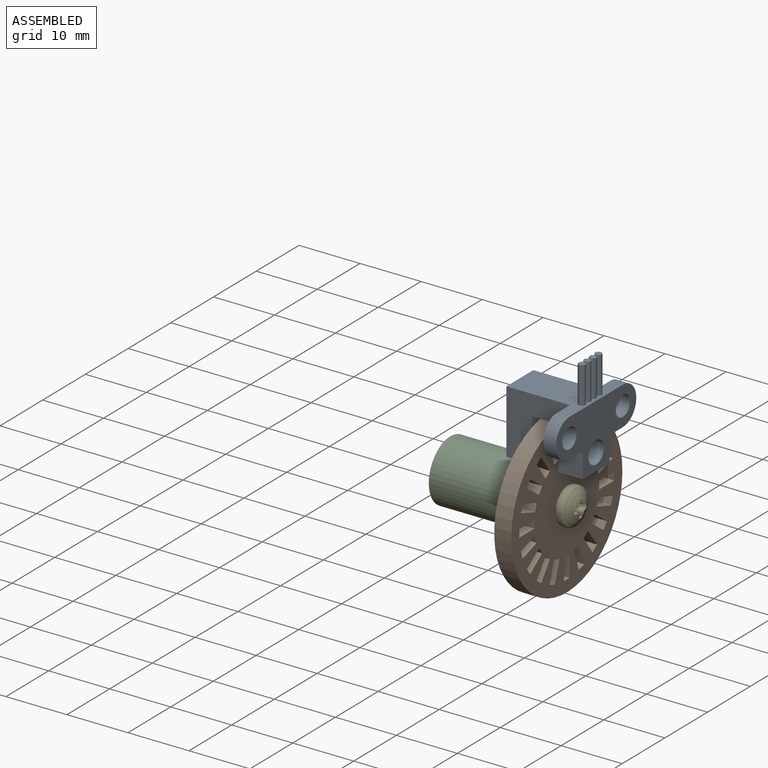
[diagram: assembled view]
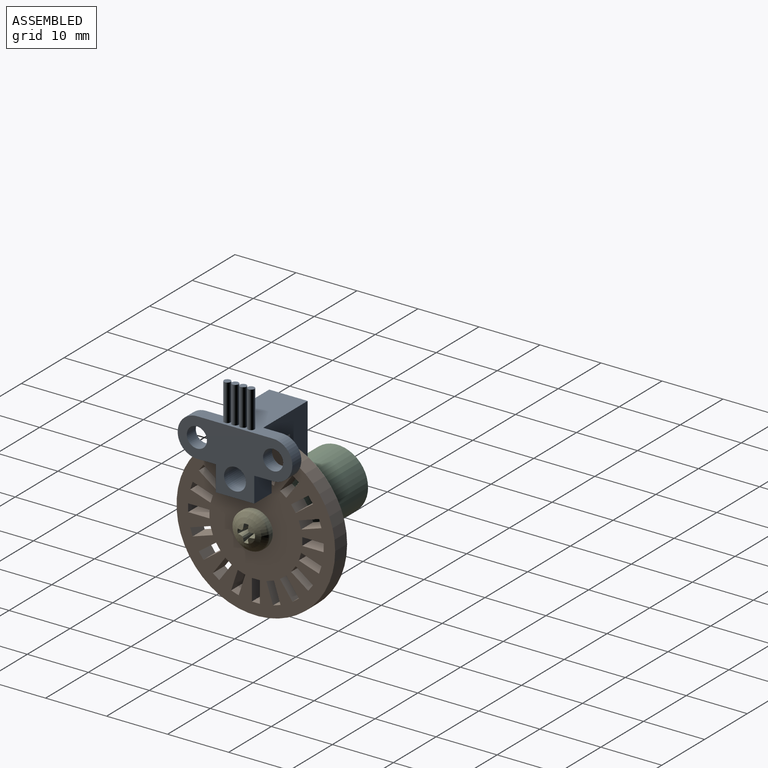
[diagram: assembled view, second angle]
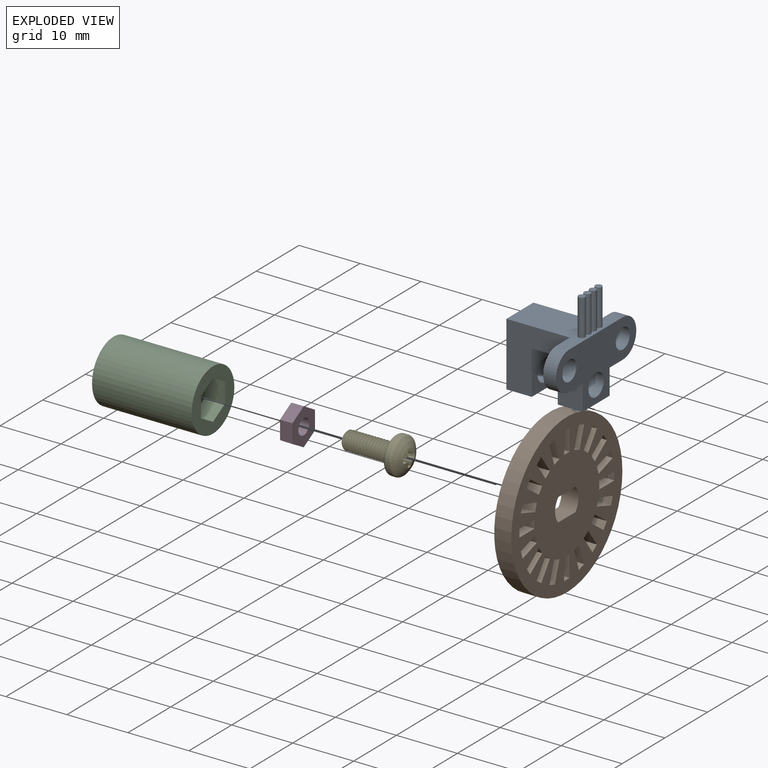
[diagram: exploded view]
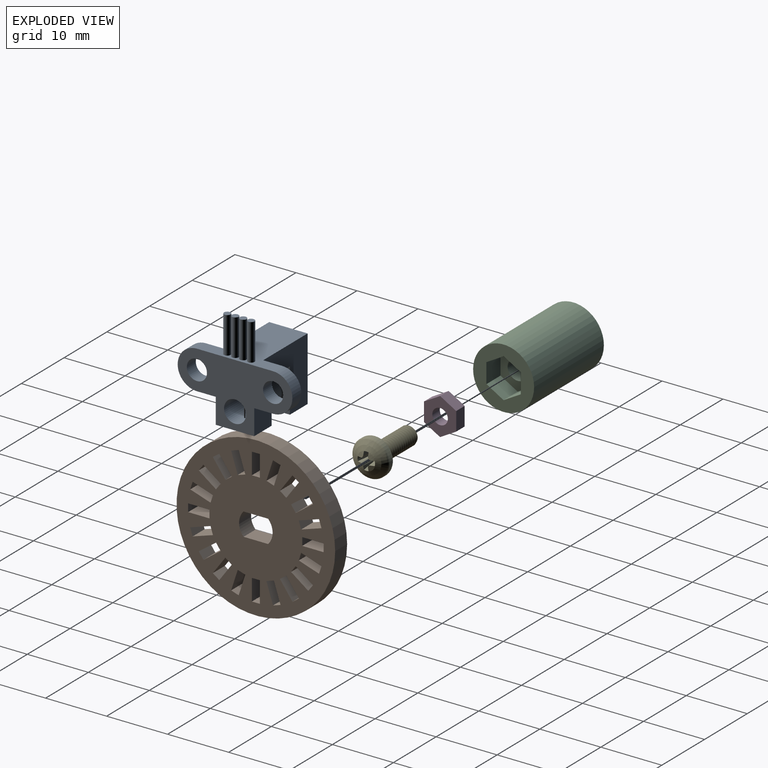
[diagram: exploded view, second angle]
ASSEMBLY  parts=5 mates=4
PART A: 28 faces, bbox 12.5x18.8x16.5 mm
  f0: plane 12.5x10.45mm, normal (0,-1,0), area 86.9mm2, adj f2,f3,f4,f5,f6,f7,f8,f9
  f1: plane 12.5x10.45mm, normal (0,1,0), area 86.9mm2, adj f2,f3,f4,f5,f6,f7,f8,f9
  f2: plane 6.3x4.26mm, normal (0,0,-1), area 26.8mm2, adj f0,f1,f6,f8
  f3: plane 12.5x12.5mm, normal (0,0,1), area 88mm2, adj f0,f1,f4,f5,f11,f12,f13,f15
  f4: plane 18.8x10.45mm, normal (1,0,0), area 108.8mm2, adj f0,f1,f3,f7,f10,f11,f13,f14
  f5: plane 10.45x6.3mm, normal (-1,0,0), area 55.7mm2, adj f0,f1,f3,f9,f18
  f6: plane 7.15x6.3mm, normal (-1,0,0), area 34.9mm2, adj f0,f1,f2,f7,f19
  f7: plane 6.3x4.08mm, normal (0,0,-1), area 25.7mm2, adj f0,f1,f4,f6
  f8: plane 7.15x6.3mm, normal (1,0,0), area 34.9mm2, adj f0,f1,f2,f9,f18
  f9: plane 6.3x4.16mm, normal (0,0,-1), area 26.2mm2, adj f0,f1,f5,f8
  f10: plane 3.06x2.1mm, normal (0,0,-1), area 6.4mm2, adj f1,f4,f11,f12
  f11: cylinder r=3.15mm len=6.3mm, axis (1,0,0), area 20.9mm2, adj f3,f4,f10,f12
  f12: plane 6.3x6.25mm, normal (-1,0,0), area 26.6mm2, adj f1,f3,f10,f11,f17
  f13: cylinder r=3.15mm len=6.3mm, axis (1,0,0), area 20.9mm2, adj f3,f4,f14,f15
  f14: plane 3.06x2.1mm, normal (0,0,-1), area 6.4mm2, adj f0,f4,f13,f15
  f15: plane 6.3x6.25mm, normal (-1,0,0), area 26.6mm2, adj f0,f3,f13,f14,f16
  f16: cylinder r=1.65mm len=3.3mm, axis (1,0,0), area 21.8mm2, adj f4,f15
  f17: cylinder r=1.65mm len=3.3mm, axis (1,0,0), area 21.8mm2, adj f4,f12
  f18: cylinder r=1.8mm len=4.16mm, axis (-1,0,0), area 47mm2, adj f5,f8
  f19: cylinder r=1.8mm len=4.08mm, axis (-1,0,0), area 46.1mm2, adj f4,f6
  f20: cylinder r=0.55mm len=6mm, axis (0,0,-1), area 20.7mm2, adj f3,f21
  f21: plane 1.1x1.1mm, normal (0,0,1), area 1mm2, adj f20
  f22: cylinder r=0.55mm len=6mm, axis (0,0,-1), area 20.7mm2, adj f3,f23
  f23: plane 1.1x1.1mm, normal (0,0,1), area 1mm2, adj f22
  f24: cylinder r=0.55mm len=6mm, axis (0,0,-1), area 20.7mm2, adj f3,f25
  f25: plane 1.1x1.1mm, normal (0,0,1), area 1mm2, adj f24
  f26: cylinder r=0.55mm len=6mm, axis (0,0,-1), area 20.7mm2, adj f3,f27
  f27: plane 1.1x1.1mm, normal (0,0,1), area 1mm2, adj f26
PART B: 87 faces, bbox 2.8x26x26 mm
  f0: plane 26x26mm, normal (1,0,0), area 421mm2, adj f2,f3,f4,f5,f6,f7,f8,f9
  f1: plane 26x26mm, normal (-1,0,0), area 421mm2, adj f2,f3,f4,f5,f6,f7,f8,f9
  f2: cylinder r=13mm len=26mm, axis (-1,0,0), area 228.7mm2, adj f0,f1
  f3: plane 2.8x1.3mm, normal (0,0,-1), area 3.6mm2, adj f0,f1,f4,f6
  f4: plane 3.5x2.8mm, normal (0,-1,0), area 9.8mm2, adj f0,f1,f3,f5
  f5: plane 2.8x1.3mm, normal (0,0,1), area 3.6mm2, adj f0,f1,f4,f6
  f6: plane 3.5x2.8mm, normal (0,1,0), area 9.8mm2, adj f0,f1,f3,f5
  f7: plane 2.8x1.24mm, normal (0,-0.31,0.95), area 3.6mm2, adj f0,f1,f8,f10
  f8: plane 3.33x2.8mm, normal (0,0.95,0.31), area 9.8mm2, adj f0,f1,f7,f9
  f9: plane 2.8x1.24mm, normal (0,0.31,-0.95), area 3.6mm2, adj f0,f1,f8,f10
  f10: plane 3.33x2.8mm, normal (0,-0.95,-0.31), area 9.8mm2, adj f0,f1,f7,f9
  f11: plane 2.8x1.05mm, normal (0,-0.59,0.81), area 3.6mm2, adj f0,f1,f12,f14
  f12: plane 2.83x2.8mm, normal (0,0.81,0.59), area 9.8mm2, adj f0,f1,f11,f13
  f13: plane 2.8x1.05mm, normal (0,0.59,-0.81), area 3.6mm2, adj f0,f1,f12,f14
  f14: plane 2.83x2.8mm, normal (0,-0.81,-0.59), area 9.8mm2, adj f0,f1,f11,f13
  f15: plane 2.8x1.05mm, normal (0,-0.81,0.59), area 3.6mm2, adj f0,f1,f16,f18
  f16: plane 2.83x2.8mm, normal (0,0.59,0.81), area 9.8mm2, adj f0,f1,f15,f17
  f17: plane 2.8x1.05mm, normal (0,0.81,-0.59), area 3.6mm2, adj f0,f1,f16,f18
  f18: plane 2.83x2.8mm, normal (0,-0.59,-0.81), area 9.8mm2, adj f0,f1,f15,f17
  f19: plane 2.8x1.24mm, normal (0,-0.95,0.31), area 3.6mm2, adj f0,f1,f20,f22
  f20: plane 3.33x2.8mm, normal (0,0.31,0.95), area 9.8mm2, adj f0,f1,f19,f21
  f21: plane 2.8x1.24mm, normal (0,0.95,-0.31), area 3.6mm2, adj f0,f1,f20,f22
  f22: plane 3.33x2.8mm, normal (0,-0.31,-0.95), area 9.8mm2, adj f0,f1,f19,f21
  f23: plane 2.8x1.3mm, normal (0,-1,0), area 3.6mm2, adj f0,f1,f24,f26
  f24: plane 3.5x2.8mm, normal (0,0,1), area 9.8mm2, adj f0,f1,f23,f25
  f25: plane 2.8x1.3mm, normal (0,1,0), area 3.6mm2, adj f0,f1,f24,f26
  f26: plane 3.5x2.8mm, normal (0,0,-1), area 9.8mm2, adj f0,f1,f23,f25
  f27: plane 2.8x1.24mm, normal (0,-0.95,-0.31), area 3.6mm2, adj f0,f1,f28,f30
  f28: plane 3.33x2.8mm, normal (0,-0.31,0.95), area 9.8mm2, adj f0,f1,f27,f29
  f29: plane 2.8x1.24mm, normal (0,0.95,0.31), area 3.6mm2, adj f0,f1,f28,f30
  f30: plane 3.33x2.8mm, normal (0,0.31,-0.95), area 9.8mm2, adj f0,f1,f27,f29
  f31: plane 2.8x1.05mm, normal (0,-0.81,-0.59), area 3.6mm2, adj f0,f1,f32,f34
  f32: plane 2.83x2.8mm, normal (0,-0.59,0.81), area 9.8mm2, adj f0,f1,f31,f33
  f33: plane 2.8x1.05mm, normal (0,0.81,0.59), area 3.6mm2, adj f0,f1,f32,f34
  f34: plane 2.83x2.8mm, normal (0,0.59,-0.81), area 9.8mm2, adj f0,f1,f31,f33
  f35: plane 2.8x1.05mm, normal (0,-0.59,-0.81), area 3.6mm2, adj f0,f1,f36,f38
  f36: plane 2.83x2.8mm, normal (0,-0.81,0.59), area 9.8mm2, adj f0,f1,f35,f37
  f37: plane 2.8x1.05mm, normal (0,0.59,0.81), area 3.6mm2, adj f0,f1,f36,f38
  f38: plane 2.83x2.8mm, normal (0,0.81,-0.59), area 9.8mm2, adj f0,f1,f35,f37
  f39: plane 2.8x1.24mm, normal (0,-0.31,-0.95), area 3.6mm2, adj f0,f1,f40,f42
  f40: plane 3.33x2.8mm, normal (0,-0.95,0.31), area 9.8mm2, adj f0,f1,f39,f41
  f41: plane 2.8x1.24mm, normal (0,0.31,0.95), area 3.6mm2, adj f0,f1,f40,f42
  f42: plane 3.33x2.8mm, normal (0,0.95,-0.31), area 9.8mm2, adj f0,f1,f39,f41
  f43: plane 2.8x1.3mm, normal (0,0,-1), area 3.6mm2, adj f0,f1,f44,f46
  f44: plane 3.5x2.8mm, normal (0,-1,0), area 9.8mm2, adj f0,f1,f43,f45
  f45: plane 2.8x1.3mm, normal (0,0,1), area 3.6mm2, adj f0,f1,f44,f46
  f46: plane 3.5x2.8mm, normal (0,1,0), area 9.8mm2, adj f0,f1,f43,f45
  f47: plane 2.8x1.24mm, normal (0,0.31,-0.95), area 3.6mm2, adj f0,f1,f48,f50
  f48: plane 3.33x2.8mm, normal (0,-0.95,-0.31), area 9.8mm2, adj f0,f1,f47,f49
  f49: plane 2.8x1.24mm, normal (0,-0.31,0.95), area 3.6mm2, adj f0,f1,f48,f50
  f50: plane 3.33x2.8mm, normal (0,0.95,0.31), area 9.8mm2, adj f0,f1,f47,f49
  f51: plane 2.8x1.05mm, normal (0,0.59,-0.81), area 3.6mm2, adj f0,f1,f52,f54
  f52: plane 2.83x2.8mm, normal (0,-0.81,-0.59), area 9.8mm2, adj f0,f1,f51,f53
  f53: plane 2.8x1.05mm, normal (0,-0.59,0.81), area 3.6mm2, adj f0,f1,f52,f54
  f54: plane 2.83x2.8mm, normal (0,0.81,0.59), area 9.8mm2, adj f0,f1,f51,f53
  f55: plane 2.8x1.05mm, normal (0,0.81,-0.59), area 3.6mm2, adj f0,f1,f56,f58
  f56: plane 2.83x2.8mm, normal (0,-0.59,-0.81), area 9.8mm2, adj f0,f1,f55,f57
  f57: plane 2.8x1.05mm, normal (0,-0.81,0.59), area 3.6mm2, adj f0,f1,f56,f58
  f58: plane 2.83x2.8mm, normal (0,0.59,0.81), area 9.8mm2, adj f0,f1,f55,f57
  f59: plane 2.8x1.24mm, normal (0,0.95,-0.31), area 3.6mm2, adj f0,f1,f60,f62
  f60: plane 3.33x2.8mm, normal (0,-0.31,-0.95), area 9.8mm2, adj f0,f1,f59,f61
  f61: plane 2.8x1.24mm, normal (0,-0.95,0.31), area 3.6mm2, adj f0,f1,f60,f62
  f62: plane 3.33x2.8mm, normal (0,0.31,0.95), area 9.8mm2, adj f0,f1,f59,f61
  f63: plane 2.8x1.3mm, normal (0,1,0), area 3.6mm2, adj f0,f1,f64,f66
  f64: plane 3.5x2.8mm, normal (0,0,-1), area 9.8mm2, adj f0,f1,f63,f65
  f65: plane 2.8x1.3mm, normal (0,-1,0), area 3.6mm2, adj f0,f1,f64,f66
  f66: plane 3.5x2.8mm, normal (0,0,1), area 9.8mm2, adj f0,f1,f63,f65
  f67: plane 2.8x1.24mm, normal (0,0.95,0.31), area 3.6mm2, adj f0,f1,f68,f70
  f68: plane 3.33x2.8mm, normal (0,0.31,-0.95), area 9.8mm2, adj f0,f1,f67,f69
  f69: plane 2.8x1.24mm, normal (0,-0.95,-0.31), area 3.6mm2, adj f0,f1,f68,f70
  f70: plane 3.33x2.8mm, normal (0,-0.31,0.95), area 9.8mm2, adj f0,f1,f67,f69
  f71: plane 2.8x1.05mm, normal (0,0.81,0.59), area 3.6mm2, adj f0,f1,f72,f74
  f72: plane 2.83x2.8mm, normal (0,0.59,-0.81), area 9.8mm2, adj f0,f1,f71,f73
  f73: plane 2.8x1.05mm, normal (0,-0.81,-0.59), area 3.6mm2, adj f0,f1,f72,f74
  f74: plane 2.83x2.8mm, normal (0,-0.59,0.81), area 9.8mm2, adj f0,f1,f71,f73
  f75: plane 2.8x1.05mm, normal (0,0.59,0.81), area 3.6mm2, adj f0,f1,f76,f78
  f76: plane 2.83x2.8mm, normal (0,0.81,-0.59), area 9.8mm2, adj f0,f1,f75,f77
  f77: plane 2.8x1.05mm, normal (0,-0.59,-0.81), area 3.6mm2, adj f0,f1,f76,f78
  f78: plane 2.83x2.8mm, normal (0,-0.81,0.59), area 9.8mm2, adj f0,f1,f75,f77
  f79: plane 3.33x2.8mm, normal (0,-0.95,0.31), area 9.8mm2, adj f0,f1,f80,f82
  f80: plane 2.8x1.24mm, normal (0,-0.31,-0.95), area 3.6mm2, adj f0,f1,f79,f81
  f81: plane 3.33x2.8mm, normal (0,0.95,-0.31), area 9.8mm2, adj f0,f1,f80,f82
  f82: plane 2.8x1.24mm, normal (0,0.31,0.95), area 3.6mm2, adj f0,f1,f79,f81
  f83: cylinder r=2.75mm len=3.75mm, axis (-1,0,0), area 11.6mm2, adj f0,f1,f84,f85
  f84: plane 4.02x2.8mm, normal (0,0,1), area 11.3mm2, adj f0,f1,f83,f86
  f85: plane 4.02x2.8mm, normal (0,0,-1), area 11.3mm2, adj f0,f1,f83,f86
  f86: cylinder r=2.75mm len=3.75mm, axis (-1,0,0), area 11.6mm2, adj f0,f1,f84,f85
PART C: 15 faces, bbox 16.3x10x10 mm
  f0: plane 6x0.76mm, normal (0,0,-1), area 4.6mm2, adj f1,f11,f12,f14
  f1: cylinder r=1.65mm len=13.03mm, axis (-1,0,0), area 86mm2, adj f0,f3,f12,f13,f14
  f2: cylinder r=5mm len=16.33mm, axis (1,0,0), area 513mm2, adj f10,f12
  f3: plane 6.5x5.63mm, normal (1,0,0), area 18.9mm2, adj f1,f4,f5,f6,f7,f8,f9
  f4: plane 3.3x3.25mm, normal (0,-1,0), area 10.7mm2, adj f3,f5,f9,f10
  f5: plane 3.3x2.82mm, normal (0,-0.5,0.87), area 10.7mm2, adj f3,f4,f6,f10
  f6: plane 3.3x2.82mm, normal (0,0.5,0.87), area 10.7mm2, adj f3,f5,f7,f10
  f7: plane 3.3x3.25mm, normal (0,1,0), area 10.7mm2, adj f3,f6,f8,f10
  f8: plane 3.3x2.82mm, normal (0,0.5,-0.87), area 10.7mm2, adj f3,f7,f9,f10
  f9: plane 3.3x2.82mm, normal (0,-0.5,-0.87), area 10.7mm2, adj f3,f4,f8,f10
  f10: plane 10x10mm, normal (1,0,0), area 51.1mm2, adj f2,f4,f5,f6,f7,f8,f9
  f11: cylinder r=2.2mm len=6mm, axis (1,0,0), area 58.2mm2, adj f0,f12,f13,f14
  f12: plane 10x10mm, normal (-1,0,0), area 65.1mm2, adj f0,f1,f2,f11,f13
  f13: plane 6x0.76mm, normal (0,0,-1), area 4.6mm2, adj f1,f11,f12,f14
  f14: plane 4.4x3.5mm, normal (-1,0,0), area 4.9mm2, adj f0,f1,f11,f13
PART D: 16 faces, bbox 2.2x5.3x6.1 mm
  f0: plane 2.64x1.87mm, normal (0,0.5,-0.87), area 5.7mm2, adj f1,f5,f6,f11
  f1: plane 3.05x1.87mm, normal (0,1,0), area 5.7mm2, adj f0,f2,f6,f10
  f2: plane 2.64x1.87mm, normal (0,0.5,0.87), area 5.7mm2, adj f1,f3,f6,f12
  f3: plane 2.64x1.87mm, normal (0,-0.5,0.87), area 5.7mm2, adj f2,f4,f6,f14
  f4: plane 3.05x1.87mm, normal (0,-1,0), area 5.7mm2, adj f3,f5,f6,f15
  f5: plane 2.64x1.87mm, normal (0,-0.5,-0.87), area 5.7mm2, adj f0,f4,f6,f13
  f6: plane 6.1x5.28mm, normal (1,0,0), area 19.1mm2, adj f0,f1,f2,f3,f4,f5,f8
  f7: plane 5.4x4.68mm, normal (-1,0,0), area 9.9mm2, adj f9,f10,f11,f12,f13,f14,f15
  f8: cylinder r=1.27mm len=2.54mm, axis (-1,0,0), area 13.9mm2, adj f6,f9
  f9: cone r=1.27mm half-angle=45deg, axis (-1,0,0), area 5.7mm2, adj f7,f8
  f10: cylinder r=0.3mm len=3.05mm, axis (0,0,1), area 1.4mm2, adj f1,f7,f11,f12
  f11: cylinder r=0.3mm len=2.79mm, axis (0,0.87,0.5), area 1.4mm2, adj f0,f7,f10,f13
  f12: cylinder r=0.3mm len=2.79mm, axis (0,-0.87,0.5), area 1.4mm2, adj f2,f7,f10,f14
  f13: cylinder r=0.3mm len=2.79mm, axis (0,0.87,-0.5), area 1.4mm2, adj f5,f7,f11,f15
  f14: cylinder r=0.3mm len=2.79mm, axis (0,-0.87,-0.5), area 1.4mm2, adj f3,f7,f12,f15
  f15: cylinder r=0.3mm len=3.05mm, axis (0,0,-1), area 1.4mm2, adj f4,f7,f13,f14
PART E: 64 faces, bbox 10.7x6.7x6.7 mm
  f0: cylinder r=1.5mm len=3mm, axis (1,0,0), area 0.3mm2, adj f16,f17,f32,f33
  f1: cylinder r=1.5mm len=3mm, axis (1,0,0), area 0.3mm2, adj f17,f18,f32,f33
  f2: cylinder r=1.5mm len=3mm, axis (1,0,0), area 0.3mm2, adj f18,f19,f32,f33
  f3: cylinder r=1.5mm len=3mm, axis (1,0,0), area 0.3mm2, adj f19,f20,f32,f33
  f4: cylinder r=1.5mm len=3mm, axis (1,0,0), area 0.3mm2, adj f20,f21,f32,f33
  f5: cylinder r=1.5mm len=3mm, axis (1,0,0), area 0.3mm2, adj f21,f22,f32,f33
  f6: cylinder r=1.5mm len=3mm, axis (1,0,0), area 0.3mm2, adj f22,f23,f32,f33
  f7: cylinder r=1.5mm len=3mm, axis (1,0,0), area 0.3mm2, adj f23,f24,f32,f33
  f8: cylinder r=1.5mm len=3mm, axis (1,0,0), area 0.3mm2, adj f24,f25,f32,f33
  f9: cylinder r=1.5mm len=3mm, axis (1,0,0), area 0.3mm2, adj f25,f26,f32,f33
  f10: cylinder r=1.5mm len=3mm, axis (1,0,0), area 0.3mm2, adj f26,f27,f32,f33
  f11: cylinder r=1.5mm len=3mm, axis (1,0,0), area 0.3mm2, adj f27,f28,f32,f33
  f12: cylinder r=1.5mm len=3mm, axis (1,0,0), area 0.3mm2, adj f28,f29,f32,f33
  f13: cylinder r=1.5mm len=3mm, axis (1,0,0), area 0.3mm2, adj f29,f30,f32,f33
  f14: cylinder r=1.5mm len=3mm, axis (1,0,0), area 0.3mm2, adj f30,f32,f33,f34
  f15: cylinder r=1.5mm len=0.58mm, axis (1,0,0), area 0mm2, adj f16,f31,f33
  f16: cylinder r=1.5mm len=3mm, axis (1,0,0), area 0.3mm2, adj f0,f15,f31,f32,f33
  f17: cylinder r=1.5mm len=3mm, axis (1,0,0), area 0.3mm2, adj f0,f1,f32,f33
  f18: cylinder r=1.5mm len=3mm, axis (1,0,0), area 0.3mm2, adj f1,f2,f32,f33
  f19: cylinder r=1.5mm len=3mm, axis (1,0,0), area 0.3mm2, adj f2,f3,f32,f33
  f20: cylinder r=1.5mm len=3mm, axis (1,0,0), area 0.3mm2, adj f3,f4,f32,f33
  f21: cylinder r=1.5mm len=3mm, axis (1,0,0), area 0.3mm2, adj f4,f5,f32,f33
  f22: cylinder r=1.5mm len=3mm, axis (1,0,0), area 0.3mm2, adj f5,f6,f32,f33
  f23: cylinder r=1.5mm len=3mm, axis (1,0,0), area 0.3mm2, adj f6,f7,f32,f33
  f24: cylinder r=1.5mm len=3mm, axis (1,0,0), area 0.3mm2, adj f7,f8,f32,f33
  f25: cylinder r=1.5mm len=3mm, axis (1,0,0), area 0.3mm2, adj f8,f9,f32,f33
  f26: cylinder r=1.5mm len=3mm, axis (1,0,0), area 0.3mm2, adj f9,f10,f32,f33
  f27: cylinder r=1.5mm len=3mm, axis (1,0,0), area 0.3mm2, adj f10,f11,f32,f33
  f28: cylinder r=1.5mm len=3mm, axis (1,0,0), area 0.3mm2, adj f11,f12,f32,f33
  f29: cylinder r=1.5mm len=3mm, axis (1,0,0), area 0.3mm2, adj f12,f13,f32,f33
  f30: cylinder r=1.5mm len=3mm, axis (1,0,0), area 0.3mm2, adj f13,f14,f32,f33
  f31: plane 5.29x5.29mm, normal (-1,0,0), area 14.8mm2, adj f15,f16,f32,f33,f37,f39
  f32: bspline ~8.19x3.46mm, area 49.2mm2, adj f0,f1,f2,f3,f4,f5,f6,f7
  f33: bspline ~8.27x3.46mm, area 49.4mm2, adj f0,f1,f2,f3,f4,f5,f6,f7
  f34: cylinder r=1.5mm len=2.78mm, axis (1,0,0), area 0.2mm2, adj f14,f32,f33,f38
  f35: bspline ~2.53x1.31mm, area 0.3mm2, adj f32,f37,f38
  f36: plane 2.35x2.35mm, normal (-1,0,0), area 4.3mm2, adj f37,f38
  f37: cylinder r=1.18mm len=8mm, axis (1,0,0), area 16.7mm2, adj f31,f32,f33,f35,f36
  f38: cone r=4.35mm half-angle=45deg, axis (1,0,0), area 1.9mm2, adj f32,f33,f34,f35,f36
  f39: torus R=2.55mm, axis (1,0,0), area 12.6mm2, adj f31,f40
  f40: cylinder r=3mm len=6mm, axis (-1,0,0), area 11.5mm2, adj f39,f42
  f41: sphere r=4.22mm, area 25.3mm2, adj f42,f43,f44,f45,f46,f47,f48,f50
  f42: torus R=2.55mm, axis (1,0,0), area 6.9mm2, adj f40,f41
  f43: cone r=1.5mm half-angle=15deg, axis (1,0,0), area 1.2mm2, adj f41,f44,f49,f63
  f44: plane 2.1x0.73mm, normal (0.09,0,1), area 0.8mm2, adj f41,f43,f45,f49
  f45: plane 2.09x0.42mm, normal (0.09,-0.38,0.92), area 0.7mm2, adj f41,f44,f46,f49
  f46: plane 2.09x0.42mm, normal (0.09,-0.92,0.38), area 0.7mm2, adj f41,f45,f47,f49
  f47: plane 2.1x0.73mm, normal (0.09,-1,0), area 0.8mm2, adj f41,f46,f48,f49
  f48: cone r=1.5mm half-angle=15deg, axis (1,0,0), area 1.2mm2, adj f41,f47,f49,f50
  f49: plane 1.86x1.86mm, normal (1,0,0), area 1.7mm2, adj f43,f44,f45,f46,f47,f48,f50,f51
  f50: plane 2.1x0.73mm, normal (0.09,1,0), area 0.8mm2, adj f41,f48,f49,f51
  f51: plane 2.09x0.42mm, normal (0.09,0.92,0.38), area 0.7mm2, adj f41,f49,f50,f52
  f52: plane 2.09x0.42mm, normal (0.09,0.38,0.92), area 0.7mm2, adj f41,f49,f51,f53
  f53: plane 2.1x0.73mm, normal (0.09,0,1), area 0.8mm2, adj f41,f49,f52,f54
  f54: cone r=1.5mm half-angle=15deg, axis (1,0,0), area 1.2mm2, adj f41,f49,f53,f55
  f55: plane 2.1x0.73mm, normal (0.09,0,-1), area 0.8mm2, adj f41,f49,f54,f56
  f56: plane 2.09x0.42mm, normal (0.09,0.38,-0.92), area 0.7mm2, adj f41,f49,f55,f57
  f57: plane 2.09x0.42mm, normal (0.09,0.92,-0.38), area 0.7mm2, adj f41,f49,f56,f58
  f58: plane 2.1x0.73mm, normal (0.09,1,0), area 0.8mm2, adj f41,f49,f57,f59
  f59: cone r=1.5mm half-angle=15deg, axis (1,0,0), area 1.2mm2, adj f41,f49,f58,f60
  f60: plane 2.1x0.73mm, normal (0.09,-1,0), area 0.8mm2, adj f41,f49,f59,f61
  f61: plane 2.09x0.42mm, normal (0.09,-0.92,-0.38), area 0.7mm2, adj f41,f49,f60,f62
  f62: plane 2.09x0.42mm, normal (0.09,-0.38,-0.92), area 0.7mm2, adj f41,f49,f61,f63
  f63: plane 2.1x0.73mm, normal (0.09,0,-1), area 0.8mm2, adj f41,f43,f49,f62
PLACE A t=(-0.11,85.97,-18)mm
PLACE B t=(-0.09,86,-17.68)mm
PLACE C t=(0,86,-17.68)mm
PLACE D t=(-2.08,86,-17.68)mm
PLACE E rot(axis=(-1,0,0),90deg) t=(1.23,23.5,-69.18)mm
MATE fastened E.f59 <-> B.f2  axis (-1,0,0) through (-6.37,29,-12.18)mm
MATE fastened D.f8 <-> C.f1  axis (-1,0,0) through (-12.47,29,-12.18)mm
MATE fastened C.f1 <-> B.f2  axis (1,0,0) through (-9.17,29,-12.18)mm
MATE slider E.f59 <-> D.f8  axis (-1,0,0) through (-14.37,29,-12.18)mm
